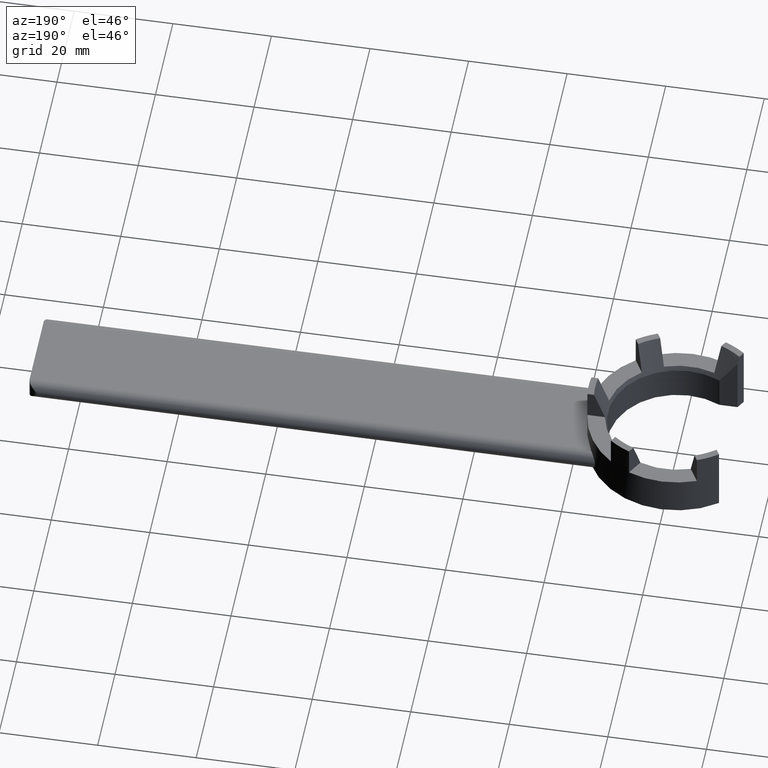
[diagram: clean part render]
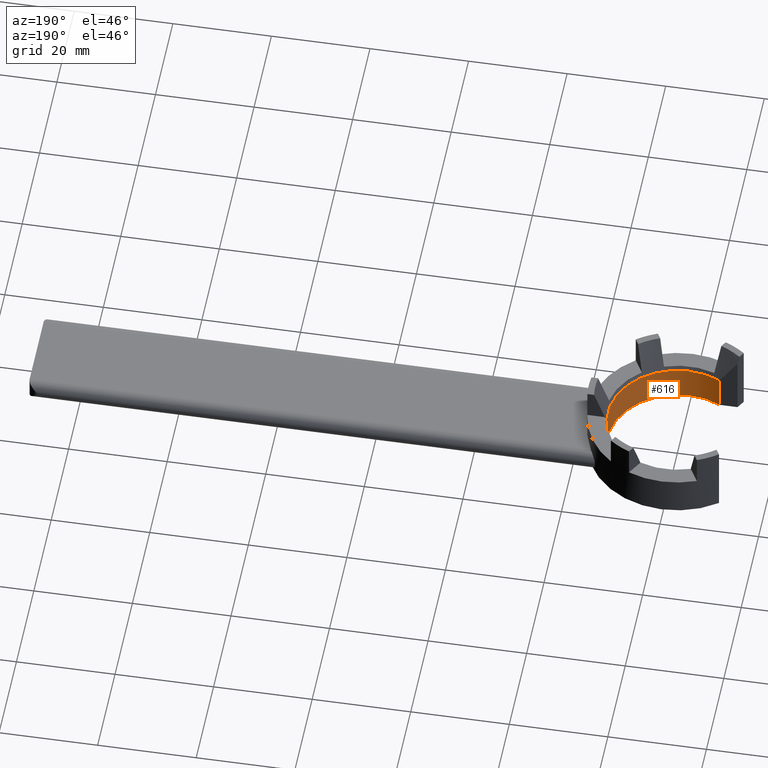
[diagram: same view with one face highlighted and labeled with its STEP entity id]
A machine part, auxiliary view. The second image highlights one B-rep face of the part: STEP entity #616.
In plain terms, the highlighted cylindrical surface (partial cylindrical patch) has radius 14.1 mm, axis along (0, 0, -1).
Its self-contained STEP definition (entity closure, byte-faithful):
#96=CIRCLE('',#1077,14.1);
#108=CIRCLE('',#1092,14.1);
#144=VERTEX_POINT('',#842);
#145=VERTEX_POINT('',#844);
#171=VERTEX_POINT('',#925);
#172=VERTEX_POINT('',#927);
#207=VECTOR('',#693,1.);
#232=VECTOR('',#737,1.);
#251=LINE('',#936,#207);
#276=LINE('',#991,#232);
#288=EDGE_CURVE('',#144,#145,#96,.T.);
#319=EDGE_CURVE('',#172,#171,#108,.F.);
#324=EDGE_CURVE('',#171,#145,#251,.F.);
#352=EDGE_CURVE('',#144,#172,#276,.T.);
#460=ORIENTED_EDGE('',*,*,#352,.T.);
#461=ORIENTED_EDGE('',*,*,#319,.T.);
#462=ORIENTED_EDGE('',*,*,#324,.T.);
#463=ORIENTED_EDGE('',*,*,#288,.F.);
#554=EDGE_LOOP('',(#460,#461,#462,#463));
#585=FACE_BOUND('',#554,.T.);
#616=ADVANCED_FACE('',(#585),#631,.F.);
#631=CYLINDRICAL_SURFACE('',#1109,14.1);
#650=DIRECTION('',(0.,0.,-1.));
#651=DIRECTION('',(14.1,0.,0.));
#685=DIRECTION('',(0.,0.,1.));
#686=DIRECTION('',(14.1,0.,0.));
#693=DIRECTION('',(0.,0.,-1.));
#735=DIRECTION('',(0.,0.,-1.));
#736=DIRECTION('',(14.1,0.,0.));
#737=DIRECTION('',(0.,0.,-1.));
#842=CARTESIAN_POINT('',(-6.3285069329187,12.6,6.99393258039072));
#843=CARTESIAN_POINT('',(0.,0.,6.99393258039072));
#844=CARTESIAN_POINT('',(-6.32850693291869,-12.6,6.99393258039072));
#925=CARTESIAN_POINT('',(-6.32850693291869,-12.6,0.));
#926=CARTESIAN_POINT('',(0.,0.,0.));
#927=CARTESIAN_POINT('',(-6.32850693291869,12.6,0.));
#936=CARTESIAN_POINT('',(-6.3285069329187,-12.6,-135.18716432723));
#990=CARTESIAN_POINT('',(0.,0.,-135.18716432723));
#991=CARTESIAN_POINT('',(-6.3285069329187,12.6,-135.18716432723));
#1077=AXIS2_PLACEMENT_3D('',#843,#650,#651);
#1092=AXIS2_PLACEMENT_3D('',#926,#685,#686);
#1109=AXIS2_PLACEMENT_3D('',#990,#735,#736);